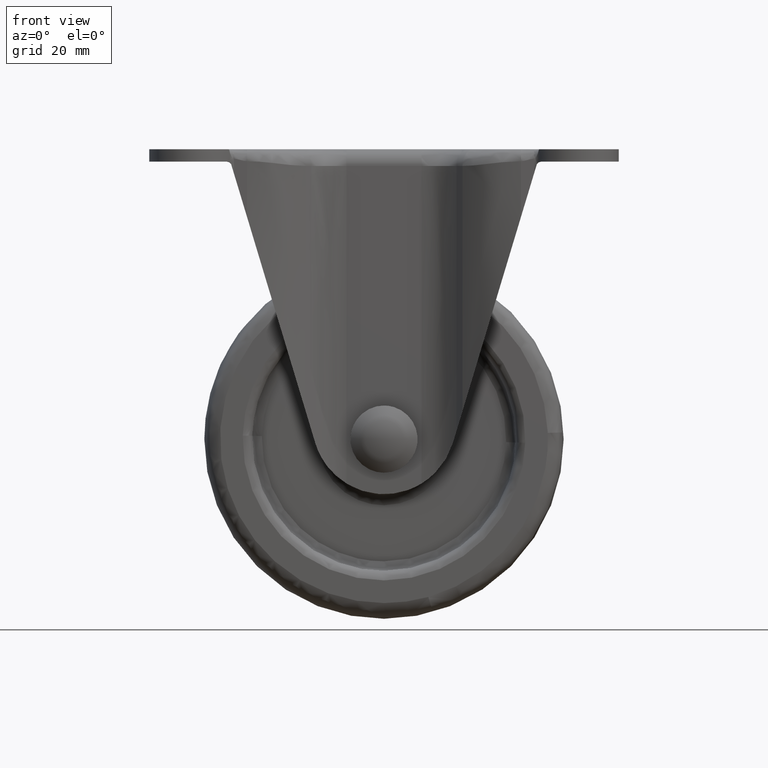
[diagram: clean part render]
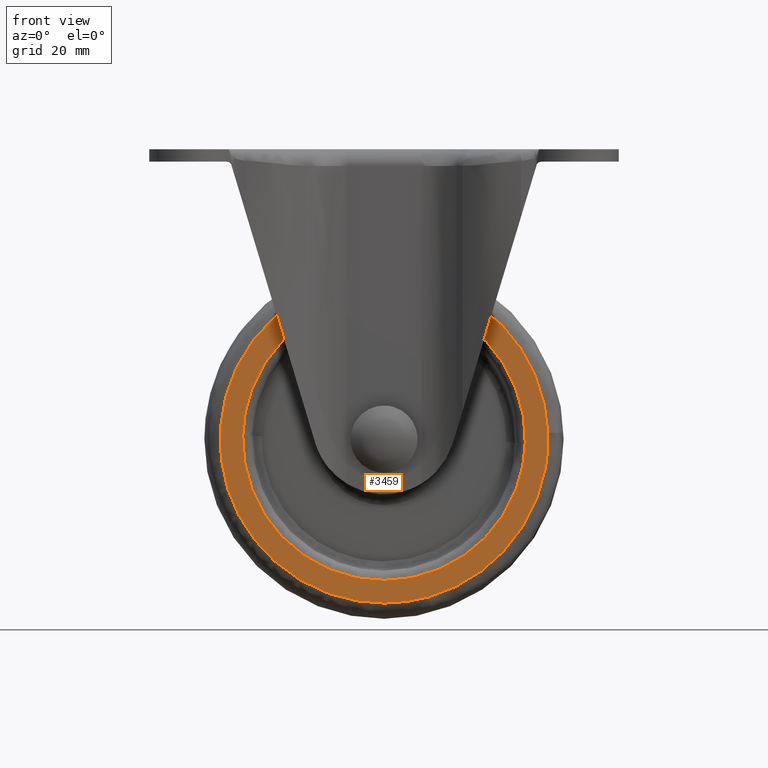
[diagram: same view with one face highlighted and labeled with its STEP entity id]
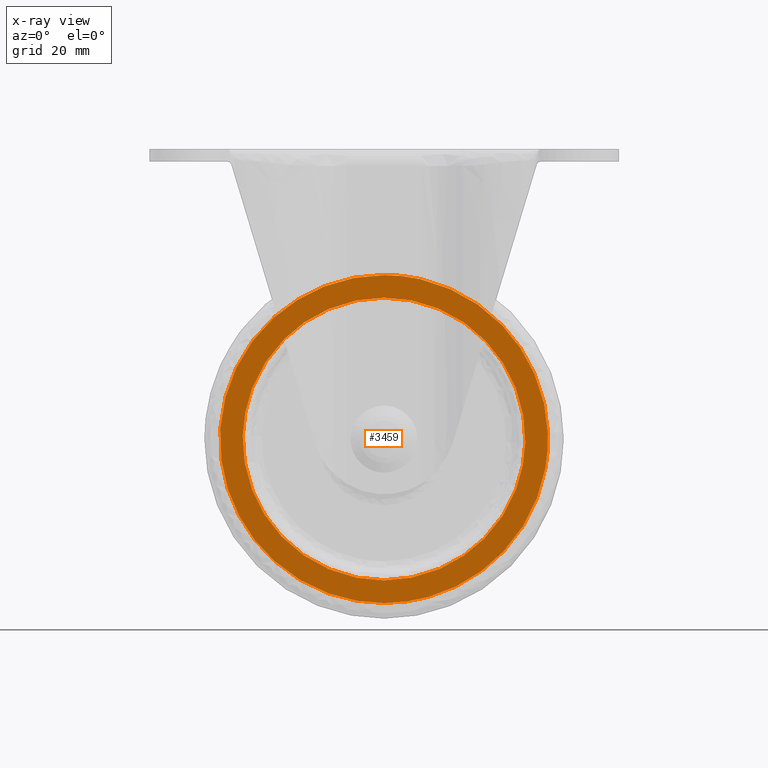
[diagram: x-ray of the same camera — body ghosted, the highlighted face saturated]
A machine part, front view. The second image highlights one B-rep face of the part: STEP entity #3459.
The next image is the same camera in x-ray: the body ghosted, the highlighted face saturated — about 0% of this face is hidden behind the body in this view.
In plain terms, the highlighted face is a freeform B-spline surface patch.
Its self-contained STEP definition (entity closure, byte-faithful):
#2487=CARTESIAN_POINT('',(34.195664776122243,-13.499999999999989,-59.210242739879803));
#2488=VERTEX_POINT('',#2487);
#2502=CARTESIAN_POINT('',(9.259157302497274,-13.499999999999989,-93.443511793569357));
#2503=VERTEX_POINT('',#2502);
#2504=CARTESIAN_POINT('',(9.259157302497274,-13.499999999999991,-93.443511793569357));
#2505=CARTESIAN_POINT('',(34.219979000000095,-13.500000000000000,-86.427982417316116));
#2506=CARTESIAN_POINT('',(34.219979000000102,-13.500000000000000,-60.500000000000000));
#2507=CARTESIAN_POINT('',(34.219979000000102,-13.500000000000000,-59.854892186520729));
#2508=CARTESIAN_POINT('',(34.195664776122243,-13.499999999999989,-59.210242739879803));
#2516=(BOUNDED_CURVE()B_SPLINE_CURVE(2,(#2504,#2505,#2506,#2507,#2508),.UNSPECIFIED.,.F.,.U.)B_SPLINE_CURVE_WITH_KNOTS((3,2,3),(0.046107938916515,0.250000000000000,0.256613471421079),.UNSPECIFIED.)CURVE()GEOMETRIC_REPRESENTATION_ITEM()RATIONAL_B_SPLINE_CURVE((0.911887947007365,0.761125591754996,1.0,0.992251836271797,0.984913610618653))REPRESENTATION_ITEM(''));
#2517=EDGE_CURVE('',#2503,#2488,#2516,.T.);
#2586=CARTESIAN_POINT('',(0.0,-13.500000000000000,-94.719979000000095));
#2587=VERTEX_POINT('',#2586);
#2588=CARTESIAN_POINT('',(0.0,-13.500000000000000,-94.719979000000095));
#2589=CARTESIAN_POINT('',(4.717565520779695,-13.499999999999998,-94.719979000000109));
#2590=CARTESIAN_POINT('',(9.259157302497274,-13.499999999999988,-93.443511793569343));
#2598=(BOUNDED_CURVE()B_SPLINE_CURVE(2,(#2588,#2589,#2590),.UNSPECIFIED.,.F.,.U.)B_SPLINE_CURVE_WITH_KNOTS((3,3),(0.0,0.046107938916515),.UNSPECIFIED.)CURVE()GEOMETRIC_REPRESENTATION_ITEM()RATIONAL_B_SPLINE_CURVE((1.0,0.945981189431551,0.911887947007365))REPRESENTATION_ITEM(''));
#2599=EDGE_CURVE('',#2587,#2503,#2598,.T.);
#2601=CARTESIAN_POINT('',(0.0,-13.500000000000000,-26.280020999999898));
#2602=VERTEX_POINT('',#2601);
#2603=CARTESIAN_POINT('',(0.0,-13.500000000000000,-26.280020999999898));
#2604=CARTESIAN_POINT('',(-34.219979000000102,-13.500000000000000,-26.280020999999898));
#2605=CARTESIAN_POINT('',(-34.219979000000102,-13.500000000000000,-60.500000000000000));
#2606=CARTESIAN_POINT('',(-34.219979000000102,-13.500000000000000,-94.719979000000095));
#2607=CARTESIAN_POINT('',(0.0,-13.500000000000000,-94.719979000000095));
#2615=(BOUNDED_CURVE()B_SPLINE_CURVE(2,(#2603,#2604,#2605,#2606,#2607),.UNSPECIFIED.,.F.,.U.)B_SPLINE_CURVE_WITH_KNOTS((3,2,3),(0.500000000000000,0.750000000000000,1.0),.UNSPECIFIED.)CURVE()GEOMETRIC_REPRESENTATION_ITEM()RATIONAL_B_SPLINE_CURVE((1.0,0.707106781186547,1.0,0.707106781186547,1.0))REPRESENTATION_ITEM(''));
#2616=EDGE_CURVE('',#2602,#2587,#2615,.T.);
#2618=CARTESIAN_POINT('',(34.195664776122236,-13.499999999999991,-59.210242739879803));
#2619=CARTESIAN_POINT('',(32.953636199932141,-13.499999999999998,-26.280020999999891));
#2620=CARTESIAN_POINT('',(0.0,-13.500000000000000,-26.280020999999898));
#2628=(BOUNDED_CURVE()B_SPLINE_CURVE(2,(#2618,#2619,#2620),.UNSPECIFIED.,.F.,.U.)B_SPLINE_CURVE_WITH_KNOTS((3,3),(0.256613471421079,0.500000000000000),.UNSPECIFIED.)CURVE()GEOMETRIC_REPRESENTATION_ITEM()RATIONAL_B_SPLINE_CURVE((0.984913610618652,0.714854944914751,1.0))REPRESENTATION_ITEM(''));
#2629=EDGE_CURVE('',#2488,#2602,#2628,.T.);
#2703=CARTESIAN_POINT('',(29.490683582257748,-13.500000000000000,-61.241337815733473));
#2704=VERTEX_POINT('',#2703);
#2705=CARTESIAN_POINT('',(0.0,-13.500000000000000,-31.0));
#2706=VERTEX_POINT('',#2705);
#2707=CARTESIAN_POINT('',(29.490683582257748,-13.499999999999998,-61.241337815733473));
#2708=CARTESIAN_POINT('',(29.500000000000007,-13.500000000000004,-60.870727447834888));
#2709=CARTESIAN_POINT('',(29.500000000000000,-13.500000000000000,-60.500000000000000));
#2710=CARTESIAN_POINT('',(29.499999999999996,-13.500000000000000,-31.000000000000007));
#2711=CARTESIAN_POINT('',(0.0,-13.500000000000000,-31.0));
#2719=(BOUNDED_CURVE()B_SPLINE_CURVE(2,(#2707,#2708,#2709,#2710,#2711),.UNSPECIFIED.,.F.,.U.)B_SPLINE_CURVE_WITH_KNOTS((3,2,3),(0.245579891767492,0.250000000000000,0.500000000000000),.UNSPECIFIED.)CURVE()GEOMETRIC_REPRESENTATION_ITEM()RATIONAL_B_SPLINE_CURVE((0.989826157676343,0.994821521089108,1.0,0.707106781186548,1.0))REPRESENTATION_ITEM(''));
#2720=EDGE_CURVE('',#2704,#2706,#2719,.T.);
#2722=CARTESIAN_POINT('',(-29.490683582257759,-13.500000000000000,-59.758662184266527));
#2723=VERTEX_POINT('',#2722);
#2724=CARTESIAN_POINT('',(0.0,-13.500000000000000,-31.0));
#2725=CARTESIAN_POINT('',(-28.767747346948561,-13.499999999999998,-31.0));
#2726=CARTESIAN_POINT('',(-29.490683582257756,-13.500000000000005,-59.758662184266527));
#2734=(BOUNDED_CURVE()B_SPLINE_CURVE(2,(#2724,#2725,#2726),.UNSPECIFIED.,.F.,.U.)B_SPLINE_CURVE_WITH_KNOTS((3,3),(0.500000000000000,0.745579891767493),.UNSPECIFIED.)CURVE()GEOMETRIC_REPRESENTATION_ITEM()RATIONAL_B_SPLINE_CURVE((1.0,0.712285260097438,0.989826157676346))REPRESENTATION_ITEM(''));
#2735=EDGE_CURVE('',#2706,#2723,#2734,.T.);
#2793=CARTESIAN_POINT('',(0.0,-13.500000000000000,-90.0));
#2794=VERTEX_POINT('',#2793);
#2795=CARTESIAN_POINT('',(0.0,-13.500000000000000,-90.0));
#2796=CARTESIAN_POINT('',(28.767747346948386,-13.500000000000000,-89.999999999999986));
#2797=CARTESIAN_POINT('',(29.490683582257748,-13.499999999999998,-61.241337815733473));
#2805=(BOUNDED_CURVE()B_SPLINE_CURVE(2,(#2795,#2796,#2797),.UNSPECIFIED.,.F.,.U.)B_SPLINE_CURVE_WITH_KNOTS((3,3),(0.0,0.245579891767492),.UNSPECIFIED.)CURVE()GEOMETRIC_REPRESENTATION_ITEM()RATIONAL_B_SPLINE_CURVE((1.0,0.712285260097440,0.989826157676343))REPRESENTATION_ITEM(''));
#2806=EDGE_CURVE('',#2794,#2704,#2805,.T.);
#2812=CARTESIAN_POINT('',(-29.490683582257763,-13.499999999999996,-59.758662184266527));
#2813=CARTESIAN_POINT('',(-29.500000000000004,-13.500000000000002,-60.129272552165119));
#2814=CARTESIAN_POINT('',(-29.500000000000000,-13.500000000000000,-60.500000000000000));
#2815=CARTESIAN_POINT('',(-29.499999999999996,-13.500000000000000,-89.999999999999986));
#2816=CARTESIAN_POINT('',(0.0,-13.500000000000000,-90.0));
#2824=(BOUNDED_CURVE()B_SPLINE_CURVE(2,(#2812,#2813,#2814,#2815,#2816),.UNSPECIFIED.,.F.,.U.)B_SPLINE_CURVE_WITH_KNOTS((3,2,3),(0.745579891767492,0.750000000000000,1.0),.UNSPECIFIED.)CURVE()GEOMETRIC_REPRESENTATION_ITEM()RATIONAL_B_SPLINE_CURVE((0.989826157676343,0.994821521089108,1.0,0.707106781186548,1.0))REPRESENTATION_ITEM(''));
#2825=EDGE_CURVE('',#2723,#2794,#2824,.T.);
#3442=CARTESIAN_POINT('',(-37.638514827782529,-13.500000000000000,-22.861445873015182));
#3443=CARTESIAN_POINT('',(-37.638514827782529,-13.500000000000000,-98.138556574588449));
#3444=CARTESIAN_POINT('',(37.637730500787200,-13.500000000000000,-22.861445873015182));
#3445=CARTESIAN_POINT('',(37.637730500787200,-13.500000000000000,-98.138556574588449));
#3446=B_SPLINE_SURFACE_WITH_KNOTS('',1,1,((#3442,#3444),(#3443,#3445)),.UNSPECIFIED.,.F.,.F.,.U.,(2,2),(2,2),(0.0,75.277110701573264),(0.0,75.276245328569729),.UNSPECIFIED.);
#3447=ORIENTED_EDGE('',*,*,#2599,.T.);
#3448=ORIENTED_EDGE('',*,*,#2517,.T.);
#3449=ORIENTED_EDGE('',*,*,#2629,.T.);
#3450=ORIENTED_EDGE('',*,*,#2616,.T.);
#3451=EDGE_LOOP('',(#3447,#3448,#3449,#3450));
#3452=FACE_OUTER_BOUND('',#3451,.T.);
#3453=ORIENTED_EDGE('',*,*,#2735,.F.);
#3454=ORIENTED_EDGE('',*,*,#2720,.F.);
#3455=ORIENTED_EDGE('',*,*,#2806,.F.);
#3456=ORIENTED_EDGE('',*,*,#2825,.F.);
#3457=EDGE_LOOP('',(#3453,#3454,#3455,#3456));
#3458=FACE_BOUND('',#3457,.T.);
#3459=ADVANCED_FACE('',(#3452,#3458),#3446,.T.);